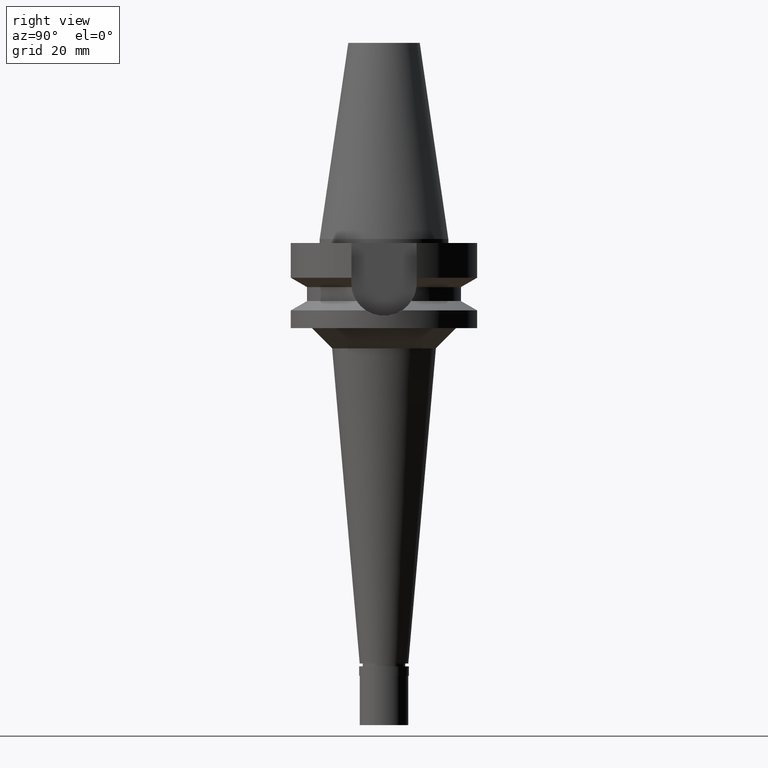
[diagram: clean part render]
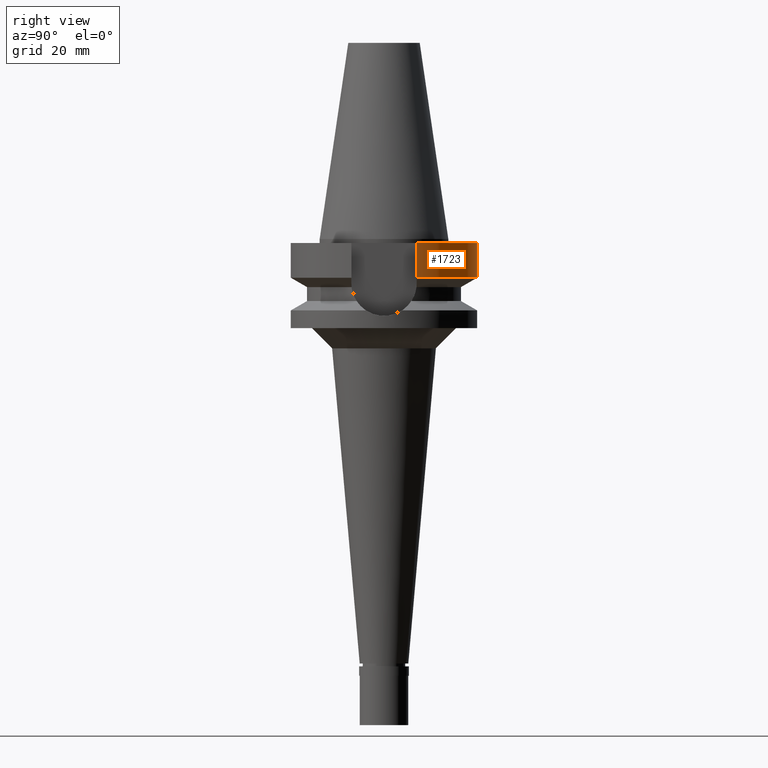
[diagram: same view with one face highlighted and labeled with its STEP entity id]
A machine part, right view. The second image highlights one B-rep face of the part: STEP entity #1723.
In plain terms, the highlighted cylindrical surface (partial cylindrical patch) has radius 23 mm, axis along (0, 0, -1).
Its self-contained STEP definition (entity closure, byte-faithful):
#10 = LINE ( 'NONE', #732, #1973 ) ;
#17 = CARTESIAN_POINT ( 'NONE',  ( 21.54524309446999908, 8.050000000000000711, -0.9999999999999000799 ) ) ;
#48 = EDGE_CURVE ( 'NONE', #1617, #2582, #10, .T. ) ;
#134 = CARTESIAN_POINT ( 'NONE',  ( 0.0000000000000000000, 1.093341284896999988E-14, -9.567208369710998639 ) ) ;
#251 = EDGE_LOOP ( 'NONE', ( #1574, #1455, #2740, #1394 ) ) ;
#367 = CARTESIAN_POINT ( 'NONE',  ( -21.54524309446999908, 8.050000000000000711, -1.000000000000000000 ) ) ;
#399 = DIRECTION ( 'NONE',  ( 9.134696575443688975E-08, 2.444834607303914619E-07, -0.9999999999999659162 ) ) ;
#434 = CARTESIAN_POINT ( 'NONE',  ( -21.54524231189000005, 8.050002094537999753, -9.567194606710000215 ) ) ;
#446 = EDGE_CURVE ( 'NONE', #1617, #2621, #1774, .T. ) ;
#464 = CARTESIAN_POINT ( 'NONE',  ( 0.0000000000000000000, 1.918041816824999936E-14, -0.9999999999999000799 ) ) ;
#545 = DIRECTION ( 'NONE',  ( 0.0000000000000000000, 1.000000000000000000, 0.0000000000000000000 ) ) ;
#645 = AXIS2_PLACEMENT_3D ( 'NONE', #1202, #2569, #1485 ) ;
#717 = DIRECTION ( 'NONE',  ( 0.0000000000000000000, 0.0000000000000000000, -1.000000000000000000 ) ) ;
#732 = CARTESIAN_POINT ( 'NONE',  ( 21.54524325238000060, 8.049999577369000292, -9.567211146607000671 ) ) ;
#935 = CARTESIAN_POINT ( 'NONE',  ( -21.54524309446999908, 8.050000000000000711, -1.000000000000000000 ) ) ;
#974 = CIRCLE ( 'NONE', #1363, 23.00000000000000000 ) ;
#1202 = CARTESIAN_POINT ( 'NONE',  ( 0.0000000000000000000, 1.918041816824999936E-14, 56.61999999999999744 ) ) ;
#1294 = AXIS2_PLACEMENT_3D ( 'NONE', #134, #1696, #545 ) ;
#1363 = AXIS2_PLACEMENT_3D ( 'NONE', #464, #717, #1386 ) ;
#1386 = DIRECTION ( 'NONE',  ( 0.0000000000000000000, 1.000000000000000000, 0.0000000000000000000 ) ) ;
#1394 = ORIENTED_EDGE ( 'NONE', *, *, #446, .T. ) ;
#1455 = ORIENTED_EDGE ( 'NONE', *, *, #1987, .T. ) ;
#1485 = DIRECTION ( 'NONE',  ( 0.0000000000000000000, -1.000000000000000000, 0.0000000000000000000 ) ) ;
#1574 = ORIENTED_EDGE ( 'NONE', *, *, #1848, .F. ) ;
#1617 = VERTEX_POINT ( 'NONE', #1856 ) ;
#1654 = DIRECTION ( 'NONE',  ( -1.843176908367992510E-08, 4.933126265047982961E-08, 0.9999999999999985567 ) ) ;
#1696 = DIRECTION ( 'NONE',  ( 0.0000000000000000000, 0.0000000000000000000, 1.000000000000000000 ) ) ;
#1723 = ADVANCED_FACE ( 'NONE', ( #2343 ), #2583, .T. ) ;
#1774 = CIRCLE ( 'NONE', #1294, 23.00000000000000000 ) ;
#1848 = EDGE_CURVE ( 'NONE', #2032, #2621, #2212, .T. ) ;
#1856 = CARTESIAN_POINT ( 'NONE',  ( 21.54524325238000060, 8.049999577369000292, -9.567211146607000671 ) ) ;
#1973 = VECTOR ( 'NONE', #1654, 1000.000000000000114 ) ;
#1987 = EDGE_CURVE ( 'NONE', #2032, #2582, #974, .T. ) ;
#2032 = VERTEX_POINT ( 'NONE', #935 ) ;
#2047 = VECTOR ( 'NONE', #399, 1000.000000000000114 ) ;
#2212 = LINE ( 'NONE', #367, #2047 ) ;
#2343 = FACE_OUTER_BOUND ( 'NONE', #251, .T. ) ;
#2569 = DIRECTION ( 'NONE',  ( 0.0000000000000000000, 0.0000000000000000000, -1.000000000000000000 ) ) ;
#2582 = VERTEX_POINT ( 'NONE', #17 ) ;
#2583 = CYLINDRICAL_SURFACE ( 'NONE', #645, 23.00000000000000000 ) ;
#2621 = VERTEX_POINT ( 'NONE', #434 ) ;
#2740 = ORIENTED_EDGE ( 'NONE', *, *, #48, .F. ) ;